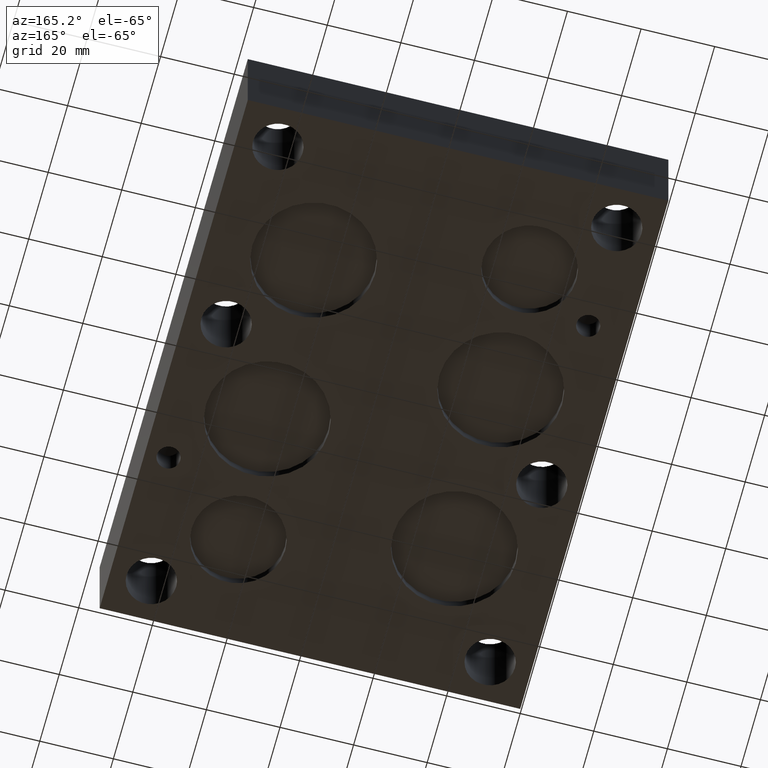
[diagram: clean part render]
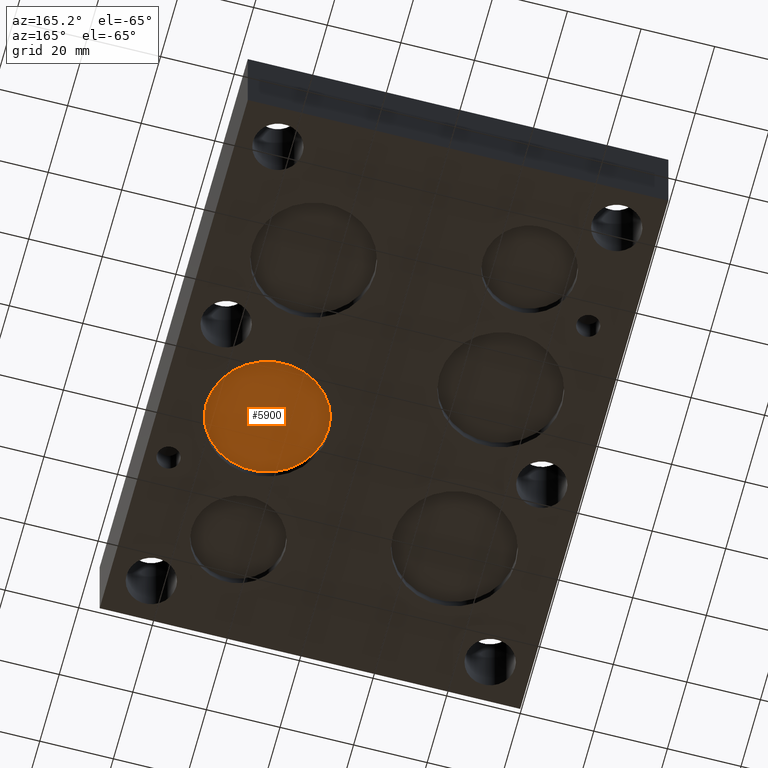
[diagram: same view with one face highlighted and labeled with its STEP entity id]
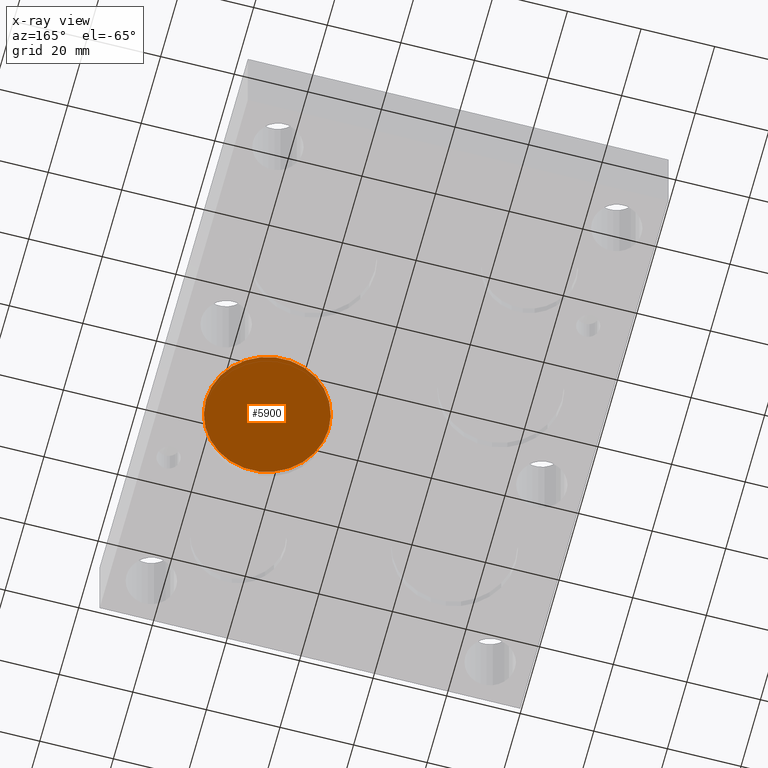
[diagram: x-ray of the same camera — body ghosted, the highlighted face saturated]
A machine part, auxiliary view. The second image highlights one B-rep face of the part: STEP entity #5900.
The next image is the same camera in x-ray: the body ghosted, the highlighted face saturated — about 0% of this face is hidden behind the body in this view.
In plain terms, the highlighted planar face has unit normal (0, 0, -1).
Its self-contained STEP definition (entity closure, byte-faithful):
#23=CIRCLE('',#6143,16.6751);
#300=PLANE('',#6144);
#589=FACE_OUTER_BOUND('',#915,.T.);
#915=EDGE_LOOP('',(#5184));
#2849=VERTEX_POINT('',#9874);
#3635=EDGE_CURVE('',#2849,#2849,#23,.T.);
#5184=ORIENTED_EDGE('',*,*,#3635,.T.);
#5900=ADVANCED_FACE('',(#589),#300,.T.);
#6143=AXIS2_PLACEMENT_3D('',#9876,#7197,#7198);
#6144=AXIS2_PLACEMENT_3D('',#9877,#7199,#7200);
#7197=DIRECTION('center_axis',(0.,0.,-1.));
#7198=DIRECTION('ref_axis',(1.,0.,0.));
#7199=DIRECTION('center_axis',(0.,0.,-1.));
#7200=DIRECTION('ref_axis',(1.,0.,0.));
#9874=CARTESIAN_POINT('',(69.0499,64.2874,2.794));
#9876=CARTESIAN_POINT('Origin',(85.725,64.2874,2.794));
#9877=CARTESIAN_POINT('Origin',(85.725,64.2874,2.794));